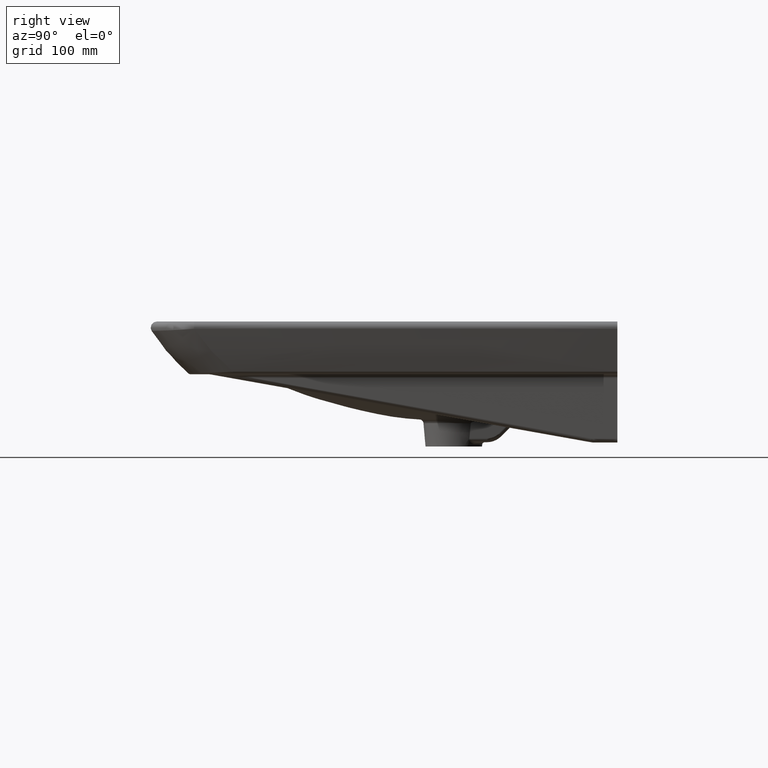
[diagram: clean part render]
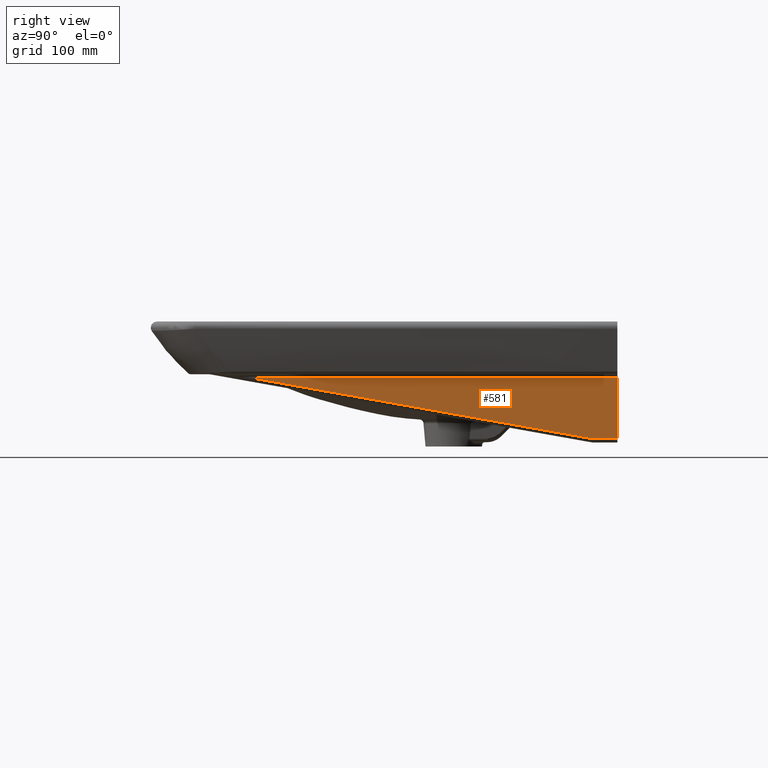
[diagram: same view with one face highlighted and labeled with its STEP entity id]
A machine part, right view. The second image highlights one B-rep face of the part: STEP entity #581.
In plain terms, the highlighted face is a freeform B-spline surface patch.
Its self-contained STEP definition (entity closure, byte-faithful):
#290=B_SPLINE_SURFACE_WITH_KNOTS('',1,1,((#6851,#6852),(#6853,#6854)),
 .UNSPECIFIED.,.F.,.F.,.F.,(2,2),(2,2),(0.,1.),(0.,1.),.UNSPECIFIED.);
#375=B_SPLINE_CURVE_WITH_KNOTS('',3,(#6819,#6820,#6821,#6822,#6823,#6824,
#6825,#6826,#6827,#6828,#6829,#6830,#6831),.UNSPECIFIED.,.F.,.F.,(4,3,3,
3,4),(0.,0.0222560464862598,0.111280232431299,0.467376976211453,1.),
 .UNSPECIFIED.);
#376=B_SPLINE_CURVE_WITH_KNOTS('',3,(#6833,#6834,#6835,#6836,#6837,#6838,
#6839,#6840,#6841,#6842),.UNSPECIFIED.,.F.,.F.,(4,3,3,4),(0.,0.0554462333326013,
0.432897143011483,1.),.UNSPECIFIED.);
#377=B_SPLINE_CURVE_WITH_KNOTS('',3,(#6844,#6845,#6846,#6847),
 .UNSPECIFIED.,.F.,.F.,(4,4),(0.,1.),.UNSPECIFIED.);
#378=B_SPLINE_CURVE_WITH_KNOTS('',1,(#6849,#6850),.UNSPECIFIED.,.F.,.F.,
(2,2),(0.,1.),.UNSPECIFIED.);
#581=ADVANCED_FACE('',(#813),#290,.T.);
#813=FACE_OUTER_BOUND('',#1012,.T.);
#1012=EDGE_LOOP('',(#1451,#1452,#1453,#1454,#1455));
#1451=ORIENTED_EDGE('',*,*,#2598,.T.);
#1452=ORIENTED_EDGE('',*,*,#2683,.T.);
#1453=ORIENTED_EDGE('',*,*,#2684,.T.);
#1454=ORIENTED_EDGE('',*,*,#2685,.T.);
#1455=ORIENTED_EDGE('',*,*,#2686,.T.);
#2308=VERTEX_POINT('',#4119);
#2309=VERTEX_POINT('',#4121);
#2380=VERTEX_POINT('',#6832);
#2381=VERTEX_POINT('',#6843);
#2382=VERTEX_POINT('',#6848);
#2598=EDGE_CURVE('',#2309,#2308,#3062,.T.);
#2683=EDGE_CURVE('',#2308,#2380,#375,.T.);
#2684=EDGE_CURVE('',#2380,#2381,#376,.T.);
#2685=EDGE_CURVE('',#2381,#2382,#377,.T.);
#2686=EDGE_CURVE('',#2382,#2309,#378,.T.);
#3062=LINE('',#4120,#3168);
#3168=VECTOR('',#3493,1.);
#3493=DIRECTION('',(0.0697616547453908,-1.01315858453495E-012,0.997563687955403));
#4119=CARTESIAN_POINT('',(214.87847841595,201.490373226469,50.1632780924155));
#4120=CARTESIAN_POINT('',(212.815005487395,201.490373226499,20.6564426809305));
#4121=CARTESIAN_POINT('',(209.653051988816,201.490373226545,-24.5582243836396));
#6819=CARTESIAN_POINT('',(214.87847841595,201.490373226469,50.1632780924155));
#6820=CARTESIAN_POINT('',(214.837755052428,198.157288661269,50.1632776717035));
#6821=CARTESIAN_POINT('',(214.797031688907,194.824204096069,50.1632772509916));
#6822=CARTESIAN_POINT('',(214.756308325385,191.491119530869,50.1632768302797));
#6823=CARTESIAN_POINT('',(214.593414871299,178.158781270069,50.1632751474319));
#6824=CARTESIAN_POINT('',(214.430521417212,164.826443009269,50.1632734645842));
#6825=CARTESIAN_POINT('',(214.267627963126,151.494104748469,50.1632717817365));
#6826=CARTESIAN_POINT('',(213.61605414678,98.164751705269,50.1632650503456));
#6827=CARTESIAN_POINT('',(212.964480330434,44.8353986620691,50.1632583189547));
#6828=CARTESIAN_POINT('',(212.312906514087,-8.4939543811308,50.1632515875638));
#6829=CARTESIAN_POINT('',(211.338330861978,-88.2600341633495,50.16324151925));
#6830=CARTESIAN_POINT('',(210.363755209868,-168.026113945568,50.1632314509319));
#6831=CARTESIAN_POINT('',(209.389179557758,-247.792193727787,50.1632213826181));
#6832=CARTESIAN_POINT('',(209.389179557758,-247.792193727787,50.1632213826181));
#6833=CARTESIAN_POINT('',(209.389179557758,-247.792193727787,50.1632213826181));
#6834=CARTESIAN_POINT('',(209.387238961275,-240.079363745226,48.7879535180639));
#6835=CARTESIAN_POINT('',(209.385298364792,-232.366533762665,47.4126856535097));
#6836=CARTESIAN_POINT('',(209.38335776831,-224.653703780104,46.0374177889555));
#6837=CARTESIAN_POINT('',(209.370147134083,-172.148519601895,36.6752650271214));
#6838=CARTESIAN_POINT('',(209.356936499857,-119.643335423686,27.3131122652872));
#6839=CARTESIAN_POINT('',(209.343725865631,-67.1381512454765,17.9509595034531));
#6840=CARTESIAN_POINT('',(209.323877487417,11.7485044510289,3.88474998413844));
#6841=CARTESIAN_POINT('',(209.304029109204,90.6351601475344,-10.1814595351762));
#6842=CARTESIAN_POINT('',(209.28418073099,169.52181584404,-24.2476690544909));
#6843=CARTESIAN_POINT('',(209.28418073099,169.52181584404,-24.2476690544909));
#6844=CARTESIAN_POINT('',(209.28418073099,169.52181584404,-24.2476690544909));
#6845=CARTESIAN_POINT('',(209.283888576881,170.682971702102,-24.4547137243387));
#6846=CARTESIAN_POINT('',(209.290948119947,171.853241518425,-24.5582243836396));
#6847=CARTESIAN_POINT('',(209.305357702073,173.03262323743,-24.5582243836396));
#6848=CARTESIAN_POINT('',(209.305357702073,173.03262323743,-24.5582243836396));
#6849=CARTESIAN_POINT('',(209.305357701946,173.032623237432,-24.5582243854503));
#6850=CARTESIAN_POINT('',(209.653051988943,201.490373226543,-24.5582243818289));
#6851=CARTESIAN_POINT('',(218.667077296281,363.290601410899,76.0704038485633));
#6852=CARTESIAN_POINT('',(210.938570895086,363.385027636585,-34.4606358275064));
#6853=CARTESIAN_POINT('',(210.446138324542,-309.56896138051,76.0704037629372));
#6854=CARTESIAN_POINT('',(202.717631923347,-309.474535154824,-34.4606359131325));